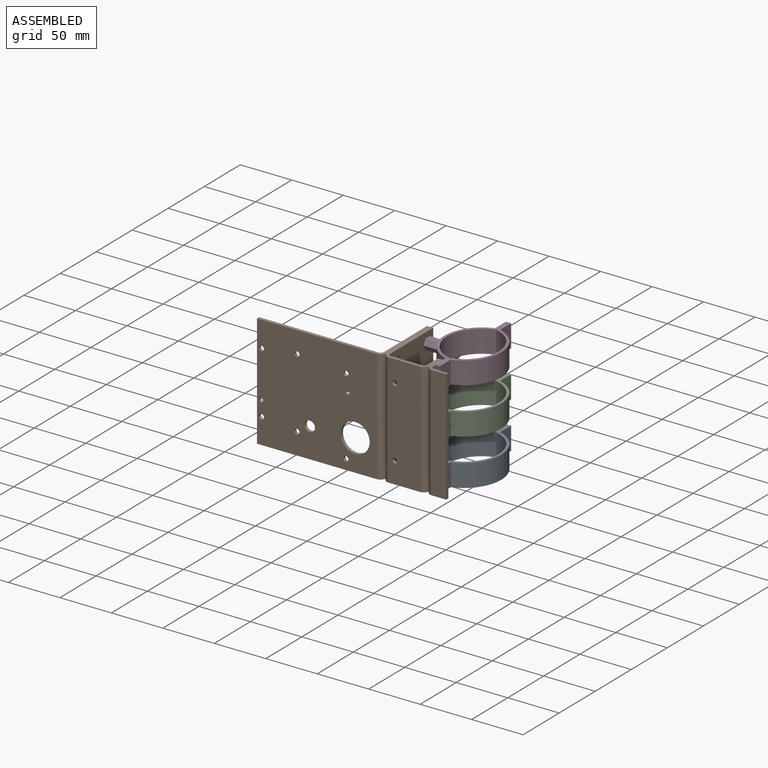
[diagram: assembled view]
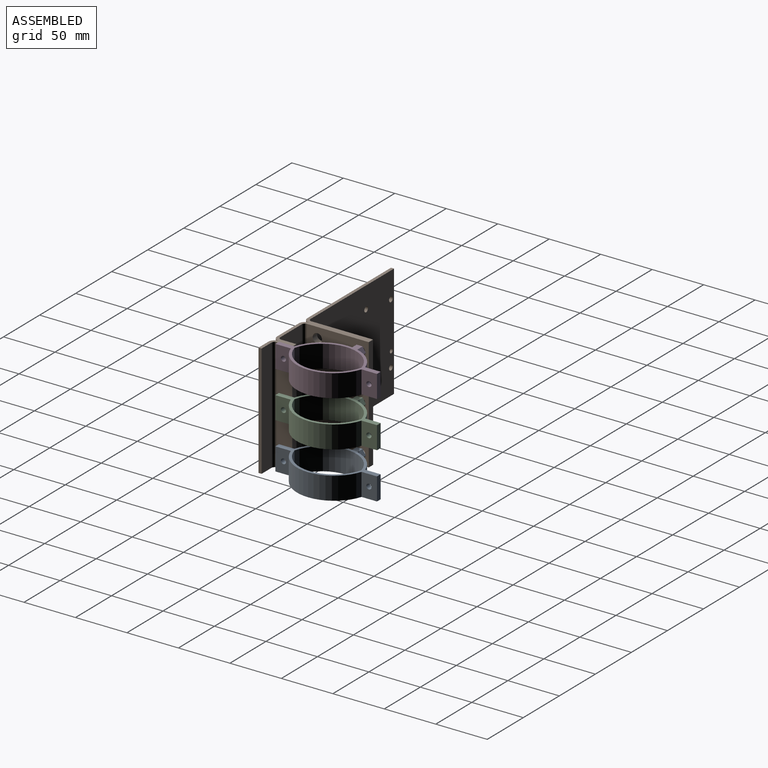
[diagram: assembled view, second angle]
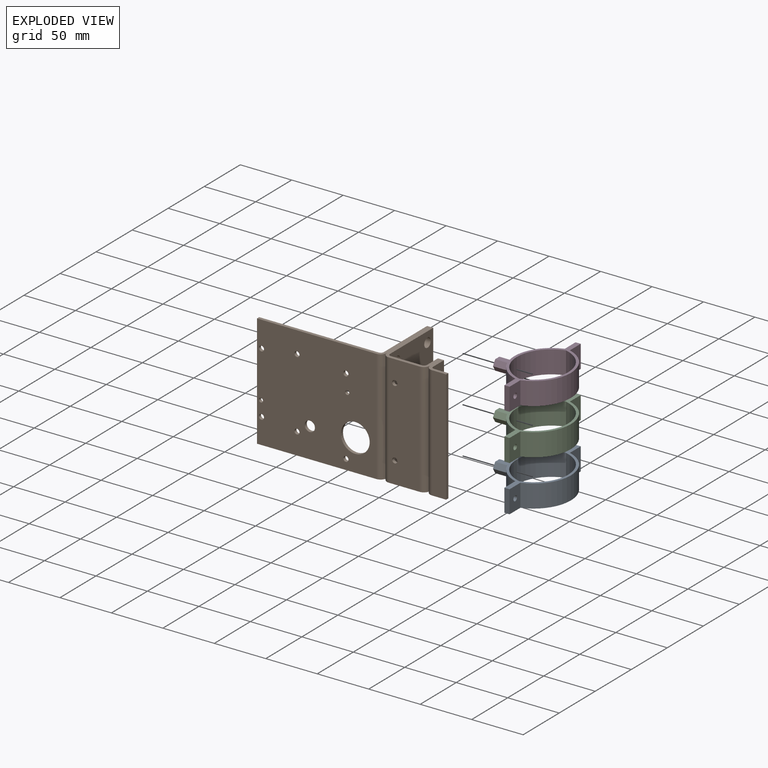
[diagram: exploded view]
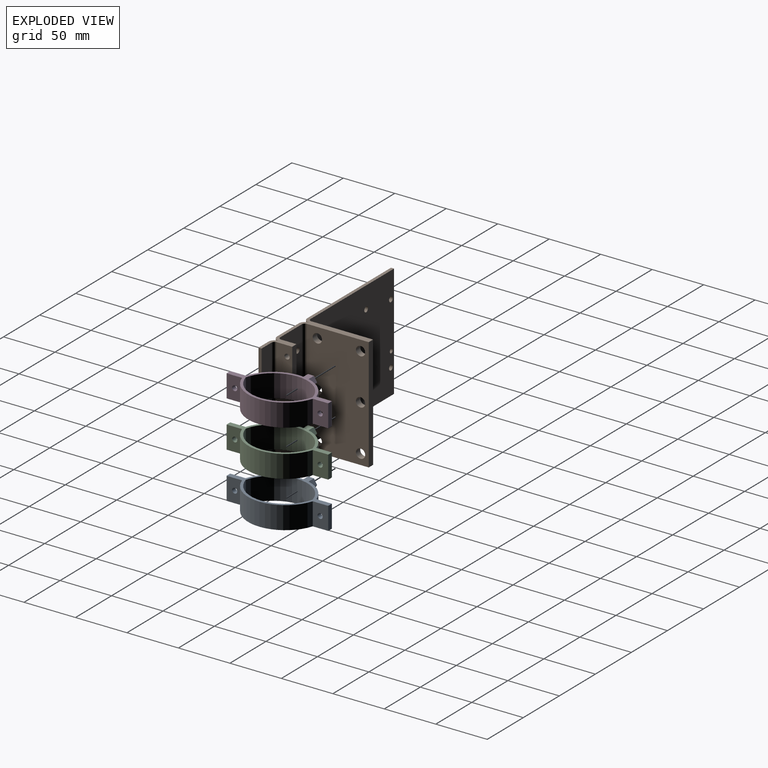
[diagram: exploded view, second angle]
ASSEMBLY  parts=4 mates=3
PART A: 23 faces, bbox 98.8x71.5x22 mm
  f0: cylinder r=33.62mm len=65mm, axis (0,0,-1), area 1940.2mm2, adj f9,f10,f11
  f1: plane 22x5mm, normal (-1,0,0), area 110mm2, adj f2,f8,f10,f11
  f2: plane 22x15mm, normal (0,-1,0), area 310.4mm2, adj f1,f3,f10,f11,f19
  f3: cylinder r=36.12mm len=68.74mm, axis (0,0,-1), area 1909.6mm2, adj f2,f4,f10,f11,f12,f13,f14,f15
  f4: plane 22x15mm, normal (0,-1,0), area 310.4mm2, adj f3,f5,f10,f11,f20
  f5: plane 22x5mm, normal (1,0,0), area 110mm2, adj f4,f6,f10,f11
  f6: plane 22x15mm, normal (0,1,0), area 310.4mm2, adj f5,f7,f10,f11,f20
  f7: cylinder r=36.12mm len=68.74mm, axis (0,0,-1), area 1999.2mm2, adj f6,f8,f10,f11
  f8: plane 22x15mm, normal (0,1,0), area 310.4mm2, adj f1,f7,f10,f11,f19
  f9: cylinder r=33.62mm len=65mm, axis (0,0,-1), area 1940.2mm2, adj f0,f10,f11
  f10: plane 98.74x55mm, normal (0,0,1), area 606.9mm2, adj f0,f1,f2,f3,f4,f5,f6,f7
  f11: plane 98.74x55mm, normal (0,0,-1), area 606.9mm2, adj f0,f1,f2,f3,f4,f5,f6,f7
  f12: plane 17.02x5.01mm, normal (0.85,0,0.52), area 98.5mm2, adj f3,f13,f17,f18
  f13: plane 16.62x5.87mm, normal (0,0,1), area 97mm2, adj f3,f12,f14,f18
  f14: plane 17.02x5.01mm, normal (-0.85,0,0.52), area 98.5mm2, adj f3,f13,f15,f18
  f15: plane 17.02x5.01mm, normal (-0.85,0,-0.52), area 98.5mm2, adj f3,f14,f16,f18
  f16: plane 16.62x5.87mm, normal (0,0,-1), area 97mm2, adj f3,f15,f17,f18
  f17: plane 17.02x5.01mm, normal (0.85,0,-0.52), area 98.5mm2, adj f3,f12,f16,f18
  f18: plane 12x10mm, normal (0,-1,0), area 25.7mm2, adj f12,f13,f14,f15,f16,f17,f21
  f19: cylinder r=2.5mm len=5mm, axis (0,-1,0), area 78.5mm2, adj f2,f8
  f20: cylinder r=2.5mm len=5mm, axis (0,-1,0), area 78.5mm2, adj f4,f6
  f21: cylinder r=4.5mm len=9mm, axis (0,-1,0), area 226.2mm2, adj f18,f22
  f22: plane 9x9mm, normal (0,-1,0), area 63.6mm2, adj f21
PART B: 45 faces, bbox 183.8x66x110 mm
  f0: plane 110x13.75mm, normal (0,1,0), area 1512.9mm2, adj f1,f15,f16,f17
  f1: cylinder r=3mm len=110mm, axis (0,0,-1), area 518.4mm2, adj f0,f2,f16,f17
  f2: plane 110x15mm, normal (1,0,0), area 1591.1mm2, adj f1,f3,f16,f17,f18,f19,f20
  f3: plane 110x6mm, normal (0,1,0), area 660mm2, adj f2,f4,f16,f17
  f4: plane 110x15mm, normal (-1,0,0), area 1591.1mm2, adj f3,f5,f16,f17,f18,f19,f20
  f5: cylinder r=3mm len=110mm, axis (0,0,-1), area 518.4mm2, adj f4,f6,f16,f17
  f6: plane 110x30mm, normal (0,1,0), area 3260.7mm2, adj f5,f7,f16,f17,f35,f36
  f7: cylinder r=3mm len=110mm, axis (0,0,-1), area 518.4mm2, adj f6,f8,f16,f17
  f8: plane 110x60mm, normal (1,0,0), area 6218.3mm2, adj f7,f9,f16,f17,f27,f28,f29,f30
  f9: plane 110x6mm, normal (0,1,0), area 660mm2, adj f8,f16,f17,f24
  f10: cylinder r=6mm len=110mm, axis (0,0,-1), area 1036.7mm2, adj f11,f16,f17,f23
  f11: plane 110x30mm, normal (0,-1,0), area 3260.7mm2, adj f10,f12,f16,f17,f35,f36
  f12: cylinder r=6mm len=110mm, axis (0,0,-1), area 1036.7mm2, adj f11,f13,f16,f17
  f13: cylinder r=6mm len=110mm, axis (0,0,-1), area 1036.7mm2, adj f12,f14,f16,f17
  f14: plane 110x13.75mm, normal (0,-1,0), area 1512.9mm2, adj f13,f15,f16,f17
  f15: plane 110x3mm, normal (1,0,0), area 330mm2, adj f0,f14,f16,f17
  f16: plane 183.75x66mm, normal (0,0,1), area 1014.1mm2, adj f0,f1,f2,f3,f4,f5,f6,f7
  f17: plane 183.75x66mm, normal (0,0,-1), area 1014.1mm2, adj f0,f1,f2,f3,f4,f5,f6,f7
  f18: cylinder r=2.5mm len=6mm, axis (1,0,0), area 94.2mm2, adj f2,f4
  f19: cylinder r=2.5mm len=6mm, axis (1,0,0), area 94.2mm2, adj f2,f4
  f20: cylinder r=2.5mm len=6mm, axis (1,0,0), area 94.2mm2, adj f2,f4
  f21: plane 110x3mm, normal (-1,0,0), area 330mm2, adj f16,f17,f22,f26
  f22: plane 116x110mm, normal (0,-1,0), area 11922.8mm2, adj f16,f17,f21,f23,f33,f34,f37,f38
  f23: cylinder r=6mm len=110mm, axis (0,0,-1), area 1036.7mm2, adj f10,f16,f17,f22
  f24: plane 110x60mm, normal (-1,0,0), area 6218.3mm2, adj f9,f16,f17,f25,f27,f28,f29,f30
  f25: cylinder r=3mm len=110mm, axis (0,0,-1), area 518.4mm2, adj f16,f17,f24,f26
  f26: plane 116x110mm, normal (0,1,0), area 11922.8mm2, adj f16,f17,f21,f25,f33,f34,f37,f38
  f27: cylinder r=4.5mm len=9mm, axis (1,0,0), area 169.6mm2, adj f8,f24
  f28: cylinder r=4.5mm len=9mm, axis (1,0,0), area 169.6mm2, adj f8,f24
  f29: cylinder r=4.5mm len=9mm, axis (1,0,0), area 169.6mm2, adj f8,f24
  f30: cylinder r=4.5mm len=9mm, axis (1,0,0), area 169.6mm2, adj f8,f24
  f31: cylinder r=4.5mm len=9mm, axis (1,0,0), area 169.6mm2, adj f8,f24
  f32: cylinder r=4.5mm len=9mm, axis (1,0,0), area 169.6mm2, adj f8,f24
  f33: cylinder r=2.5mm len=5mm, axis (0,-1,0), area 47.1mm2, adj f22,f26
  f34: cylinder r=2.5mm len=5mm, axis (0,-1,0), area 47.1mm2, adj f22,f26
  f35: cylinder r=2.5mm len=5mm, axis (0,-1,0), area 47.1mm2, adj f6,f11
  f36: cylinder r=2.5mm len=5mm, axis (0,-1,0), area 47.1mm2, adj f6,f11
  f37: cylinder r=14mm len=28mm, axis (0,-1,0), area 263.9mm2, adj f22,f26
  f38: cylinder r=2.5mm len=5mm, axis (0,-1,0), area 47.1mm2, adj f22,f26
  f39: cylinder r=2.5mm len=5mm, axis (0,-1,0), area 47.1mm2, adj f22,f26
  f40: cylinder r=2.5mm len=5mm, axis (0,-1,0), area 47.1mm2, adj f22,f26
  f41: cylinder r=2.5mm len=5mm, axis (0,-1,0), area 47.1mm2, adj f22,f26
  f42: cylinder r=5mm len=10mm, axis (0,-1,0), area 94.2mm2, adj f22,f26
  f43: cylinder r=2mm len=4mm, axis (0,-1,0), area 37.7mm2, adj f22,f26
  f44: cylinder r=2mm len=4mm, axis (0,-1,0), area 37.7mm2, adj f22,f26
PART C: same geometry as A
PART D: same geometry as A
PLACE A rot(axis=(0,0,-1),90deg) t=(-12.41,-23.45,-68.14)mm
PLACE B t=(-17.91,-59.95,-12.14)mm
PLACE C rot(axis=(0,0,-1),90deg) t=(-12.41,-23.45,-23.14)mm
PLACE D rot(axis=(0,0,-1),90deg) t=(-12.41,-23.45,21.86)mm
MATE cylindrical D.f20 <-> B.f29  axis (-1,0,0) through (-14.91,-64.95,32.86)mm
MATE cylindrical A.f20 <-> B.f27  axis (-1,0,0) through (-14.91,-64.95,-57.14)mm
MATE cylindrical C.f20 <-> B.f28  axis (-1,0,0) through (-14.91,-64.95,-12.14)mm
